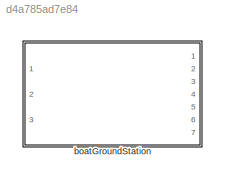
MODEL slx_d4a785ad7e84
KIND library
CONFIG AbsTol = auto
CONFIG EnableMultiTasking = off
CONFIG FixedStep = auto
CONFIG MaxStep = auto
CONFIG MinStep = auto
CONFIG RelTol = 1e-3
CONFIG SampleTimeConstraint = Unconstrained
CONFIG SolverName = VariableStepAuto
CONFIG StartTime = 0.0
CONFIG StopTime = 10.0
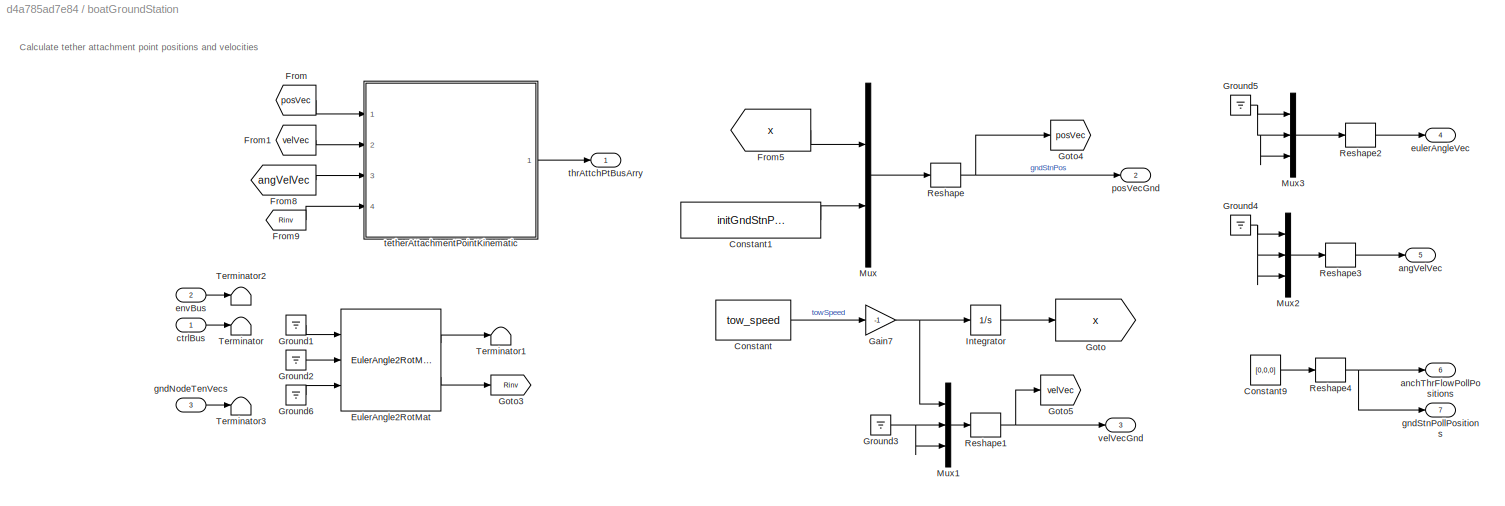
BLOCK [SubSystem] boatGroundStation
  Ports = [3, 7]
  RequestExecContextInheritance = off
  VariantControl = VSS_groundStation_raftGroundStation
BLOCK [Constant] boatGroundStation/Constant
  Value = tow_speed
BLOCK [Constant] boatGroundStation/Constant1
  Value = initGndStnPos(2:3)
BLOCK [Constant] boatGroundStation/Constant9
  Value = [0,0,0]
BLOCK [Reference] boatGroundStation/EulerAngle2RotMat  REF=eulAng2RotMat_ul/EulerAngle2RotMat
  Ports = [3, 2]
  SourceBlock = eulAng2RotMat_ul/EulerAngle2RotMat
  SourceType = SubSystem
BLOCK [From] boatGroundStation/From
  GotoTag = posVec
BLOCK [From] boatGroundStation/From1
  GotoTag = velVec
BLOCK [From] boatGroundStation/From5
  GotoTag = x
BLOCK [From] boatGroundStation/From8
  GotoTag = angVelVec
BLOCK [From] boatGroundStation/From9
  GotoTag = Rinv
BLOCK [Gain] boatGroundStation/Gain7
  Gain = -1
BLOCK [Goto] boatGroundStation/Goto
  GotoTag = x
BLOCK [Goto] boatGroundStation/Goto3
  GotoTag = Rinv
BLOCK [Goto] boatGroundStation/Goto4
  GotoTag = posVec
BLOCK [Goto] boatGroundStation/Goto5
  GotoTag = velVec
BLOCK [Ground] boatGroundStation/Ground1
BLOCK [Ground] boatGroundStation/Ground2
BLOCK [Ground] boatGroundStation/Ground3
BLOCK [Ground] boatGroundStation/Ground4
BLOCK [Ground] boatGroundStation/Ground5
BLOCK [Ground] boatGroundStation/Ground6
BLOCK [Integrator] boatGroundStation/Integrator
  InitialCondition = x_init
  Ports = [1, 1]
BLOCK [Mux] boatGroundStation/Mux
  DisplayOption = bar
  Inputs = 2
  Ports = [2, 1]
BLOCK [Mux] boatGroundStation/Mux1
  DisplayOption = bar
  Inputs = 3
  Ports = [3, 1]
BLOCK [Mux] boatGroundStation/Mux2
  DisplayOption = bar
  Inputs = 3
  Ports = [3, 1]
BLOCK [Mux] boatGroundStation/Mux3
  DisplayOption = bar
  Inputs = 3
  Ports = [3, 1]
BLOCK [Reshape] boatGroundStation/Reshape
  OutputDimensionality = Column vector (2-D)
  Ports = [1, 1]
BLOCK [Reshape] boatGroundStation/Reshape1
  OutputDimensionality = Column vector (2-D)
  Ports = [1, 1]
BLOCK [Reshape] boatGroundStation/Reshape2
  OutputDimensionality = Column vector (2-D)
  Ports = [1, 1]
BLOCK [Reshape] boatGroundStation/Reshape3
  OutputDimensionality = Column vector (2-D)
  Ports = [1, 1]
BLOCK [Reshape] boatGroundStation/Reshape4
  OutputDimensionality = Column vector (2-D)
  Ports = [1, 1]
BLOCK [Terminator] boatGroundStation/Terminator
BLOCK [Terminator] boatGroundStation/Terminator1
BLOCK [Terminator] boatGroundStation/Terminator2
BLOCK [Terminator] boatGroundStation/Terminator3
BLOCK [Outport] boatGroundStation/anchThrFlowPollPositions
  Port = 6
  VectorParamsAs1DForOutWhenUnconnected = off
BLOCK [Outport] boatGroundStation/angVelVec
  Port = 5
  VectorParamsAs1DForOutWhenUnconnected = off
BLOCK [Inport] boatGroundStation/ctrlBus
  OutDataTypeStr = Bus: gndStnCtrlBus
BLOCK [Inport] boatGroundStation/envBus
  OutDataTypeStr = Bus: envBus
  Port = 2
BLOCK [Outport] boatGroundStation/eulerAngleVec
  Port = 4
  VectorParamsAs1DForOutWhenUnconnected = off
BLOCK [Inport] boatGroundStation/gndNodeTenVecs
  Port = 3
BLOCK [Outport] boatGroundStation/gndStnPollPositions
  Port = 7
  VectorParamsAs1DForOutWhenUnconnected = off
BLOCK [Outport] boatGroundStation/posVecGnd
  Port = 2
  VectorParamsAs1DForOutWhenUnconnected = off
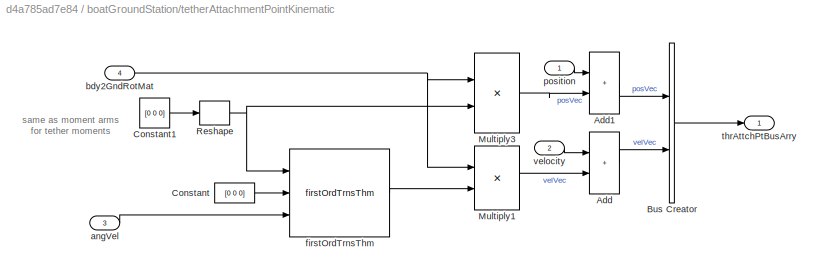
BLOCK [SubSystem] boatGroundStation/tetherAttachmentPointKinematic
  InitFcn = thrAttachPtKinematics_init
  Ports = [4, 1]
  RequestExecContextInheritance = off
BLOCK [Sum] boatGroundStation/tetherAttachmentPointKinematic/Add
  IconShape = rectangular
  Ports = [2, 1]
BLOCK [Sum] boatGroundStation/tetherAttachmentPointKinematic/Add1
  IconShape = rectangular
  Ports = [2, 1]
BLOCK [BusCreator] boatGroundStation/tetherAttachmentPointKinematic/Bus Creator
  DisplayOption = bar
  InheritFromInputs = on
  Inputs = 2
  NonVirtualBus = on
  OutDataTypeStr = Bus: thrAttachPtKinematicsBus
  Ports = [2, 1]
BLOCK [Constant] boatGroundStation/tetherAttachmentPointKinematic/Constant
  Value = [0 0 0]
BLOCK [Constant] boatGroundStation/tetherAttachmentPointKinematic/Constant1
  Value = [0 0 0]
BLOCK [Product] boatGroundStation/tetherAttachmentPointKinematic/Multiply1
  Multiplication = Matrix(*)
  Ports = [2, 1]
BLOCK [Product] boatGroundStation/tetherAttachmentPointKinematic/Multiply3
  Multiplication = Matrix(*)
  Ports = [2, 1]
BLOCK [Reshape] boatGroundStation/tetherAttachmentPointKinematic/Reshape
  OutputDimensionality = Column vector (2-D)
  Ports = [1, 1]
BLOCK [Inport] boatGroundStation/tetherAttachmentPointKinematic/angVel
  Port = 3
BLOCK [Inport] boatGroundStation/tetherAttachmentPointKinematic/bdy2GndRotMat
  Port = 4
BLOCK [Reference] boatGroundStation/tetherAttachmentPointKinematic/firstOrdTrnsThm  REF=firstOrdTrnsThm_ul/firstOrdTrnsThm
  Ports = [3, 1]
  SourceBlock = firstOrdTrnsThm_ul/firstOrdTrnsThm
  SourceType = SubSystem
BLOCK [Inport] boatGroundStation/tetherAttachmentPointKinematic/position
BLOCK [Outport] boatGroundStation/tetherAttachmentPointKinematic/thrAttchPtBusArry
  VectorParamsAs1DForOutWhenUnconnected = off
BLOCK [Inport] boatGroundStation/tetherAttachmentPointKinematic/velocity
  Port = 2
BLOCK [Outport] boatGroundStation/thrAttchPtBusArry
  VectorParamsAs1DForOutWhenUnconnected = off
BLOCK [Outport] boatGroundStation/velVecGnd
  Port = 3
  VectorParamsAs1DForOutWhenUnconnected = off
ANNOTATION boatGroundStation: Calculate tether attachment point positions and velocities
ANNOTATION boatGroundStation/tetherAttachmentPointKinematic: same as moment arms for tether moments
LINE boatGroundStation/Constant1:1 -> boatGroundStation/Mux:2
LINE boatGroundStation/Constant9:1 -> boatGroundStation/Reshape4:1
LINE boatGroundStation/Constant:1 -> boatGroundStation/Gain7:1
LINE boatGroundStation/EulerAngle2RotMat:1 -> boatGroundStation/Terminator1:1
LINE boatGroundStation/EulerAngle2RotMat:2 -> boatGroundStation/Goto3:1
LINE boatGroundStation/From1:1 -> boatGroundStation/tetherAttachmentPointKinematic:2
LINE boatGroundStation/From5:1 -> boatGroundStation/Mux:1
LINE boatGroundStation/From8:1 -> boatGroundStation/tetherAttachmentPointKinematic:3
LINE boatGroundStation/From9:1 -> boatGroundStation/tetherAttachmentPointKinematic:4
LINE boatGroundStation/From:1 -> boatGroundStation/tetherAttachmentPointKinematic:1
NET boatGroundStation/Gain7:1 -> boatGroundStation/Integrator:1, boatGroundStation/Mux1:1
LINE boatGroundStation/Ground1:1 -> boatGroundStation/EulerAngle2RotMat:1
LINE boatGroundStation/Ground2:1 -> boatGroundStation/EulerAngle2RotMat:2
NET boatGroundStation/Ground3:1 -> boatGroundStation/Mux1:2, boatGroundStation/Mux1:3
NET boatGroundStation/Ground4:1 -> boatGroundStation/Mux2:1, boatGroundStation/Mux2:2, boatGroundStation/Mux2:3
NET boatGroundStation/Ground5:1 -> boatGroundStation/Mux3:1, boatGroundStation/Mux3:2, boatGroundStation/Mux3:3
LINE boatGroundStation/Ground6:1 -> boatGroundStation/EulerAngle2RotMat:3
LINE boatGroundStation/Integrator:1 -> boatGroundStation/Goto:1
LINE boatGroundStation/Mux1:1 -> boatGroundStation/Reshape1:1
LINE boatGroundStation/Mux2:1 -> boatGroundStation/Reshape3:1
LINE boatGroundStation/Mux3:1 -> boatGroundStation/Reshape2:1
LINE boatGroundStation/Mux:1 -> boatGroundStation/Reshape:1
NET boatGroundStation/Reshape1:1 -> boatGroundStation/Goto5:1, boatGroundStation/velVecGnd:1
LINE boatGroundStation/Reshape2:1 -> boatGroundStation/eulerAngleVec:1
LINE boatGroundStation/Reshape3:1 -> boatGroundStation/angVelVec:1
NET boatGroundStation/Reshape4:1 -> boatGroundStation/anchThrFlowPollPositions:1, boatGroundStation/gndStnPollPositions:1
NET boatGroundStation/Reshape:1 -> boatGroundStation/Goto4:1, boatGroundStation/posVecGnd:1
LINE boatGroundStation/ctrlBus:1 -> boatGroundStation/Terminator:1
LINE boatGroundStation/envBus:1 -> boatGroundStation/Terminator2:1
LINE boatGroundStation/gndNodeTenVecs:1 -> boatGroundStation/Terminator3:1
LINE boatGroundStation/tetherAttachmentPointKinematic/Add1:1 -> boatGroundStation/tetherAttachmentPointKinematic/Bus Creator:1
LINE boatGroundStation/tetherAttachmentPointKinematic/Add:1 -> boatGroundStation/tetherAttachmentPointKinematic/Bus Creator:2
LINE boatGroundStation/tetherAttachmentPointKinematic/Bus Creator:1 -> boatGroundStation/tetherAttachmentPointKinematic/thrAttchPtBusArry:1
LINE boatGroundStation/tetherAttachmentPointKinematic/Constant1:1 -> boatGroundStation/tetherAttachmentPointKinematic/Reshape:1
LINE boatGroundStation/tetherAttachmentPointKinematic/Constant:1 -> boatGroundStation/tetherAttachmentPointKinematic/firstOrdTrnsThm:2
LINE boatGroundStation/tetherAttachmentPointKinematic/Multiply1:1 -> boatGroundStation/tetherAttachmentPointKinematic/Add:2
LINE boatGroundStation/tetherAttachmentPointKinematic/Multiply3:1 -> boatGroundStation/tetherAttachmentPointKinematic/Add1:2
NET boatGroundStation/tetherAttachmentPointKinematic/Reshape:1 -> boatGroundStation/tetherAttachmentPointKinematic/Multiply3:2, boatGroundStation/tetherAttachmentPointKinematic/firstOrdTrnsThm:1
LINE boatGroundStation/tetherAttachmentPointKinematic/angVel:1 -> boatGroundStation/tetherAttachmentPointKinematic/firstOrdTrnsThm:3
NET boatGroundStation/tetherAttachmentPointKinematic/bdy2GndRotMat:1 -> boatGroundStation/tetherAttachmentPointKinematic/Multiply1:1, boatGroundStation/tetherAttachmentPointKinematic/Multiply3:1
LINE boatGroundStation/tetherAttachmentPointKinematic/firstOrdTrnsThm:1 -> boatGroundStation/tetherAttachmentPointKinematic/Multiply1:2
LINE boatGroundStation/tetherAttachmentPointKinematic/position:1 -> boatGroundStation/tetherAttachmentPointKinematic/Add1:1
LINE boatGroundStation/tetherAttachmentPointKinematic/velocity:1 -> boatGroundStation/tetherAttachmentPointKinematic/Add:1
LINE boatGroundStation/tetherAttachmentPointKinematic:1 -> boatGroundStation/thrAttchPtBusArry:1
note: NET lines group one-source signal fan-out (src -> all destinations, sorted); 1:1 wires keep LINE
